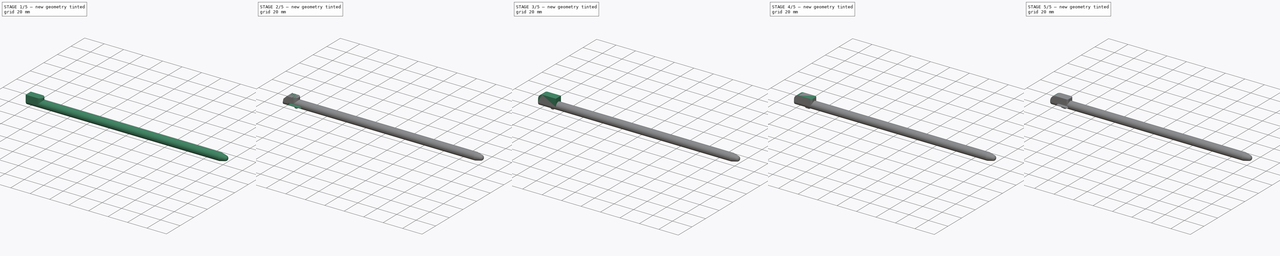
[diagram: build sequence overview — one tinted view per stage of 5, left to right]
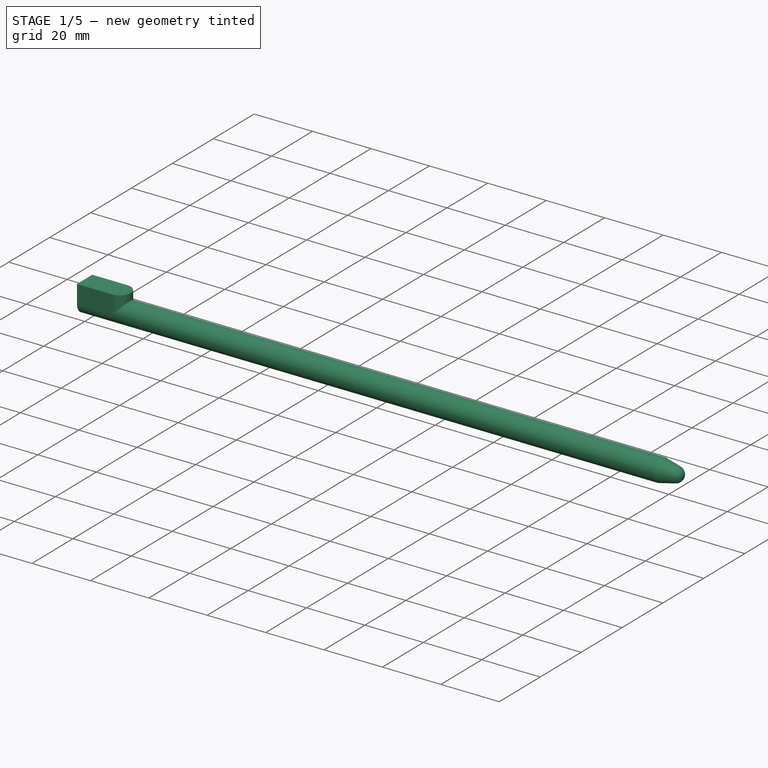
[diagram: stage 1 of 5 — iso view after this stage's code; geometry added in this stage tinted green]
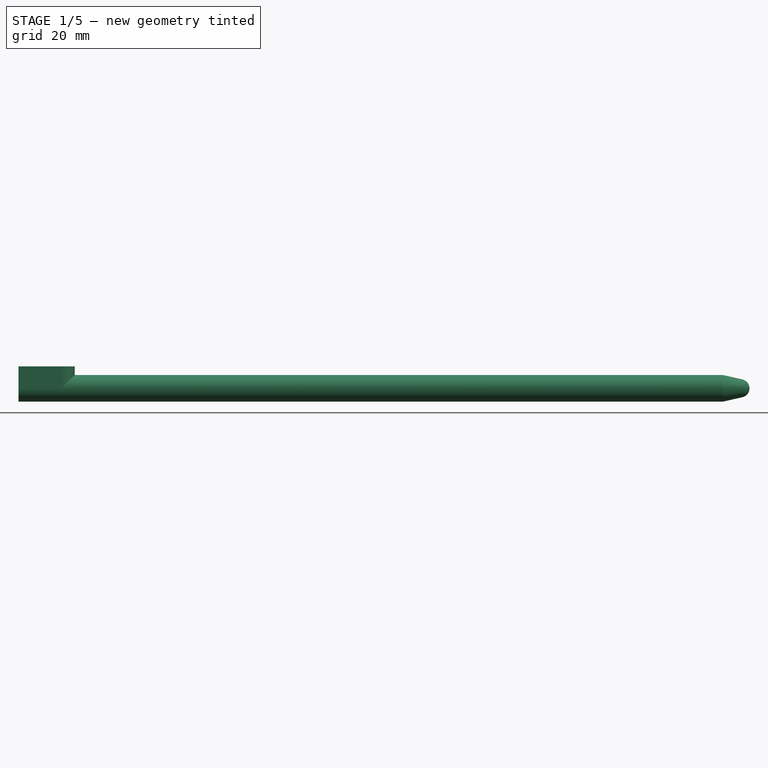
[diagram: stage 1 of 5 — front view after this stage's code; geometry added in this stage tinted green]
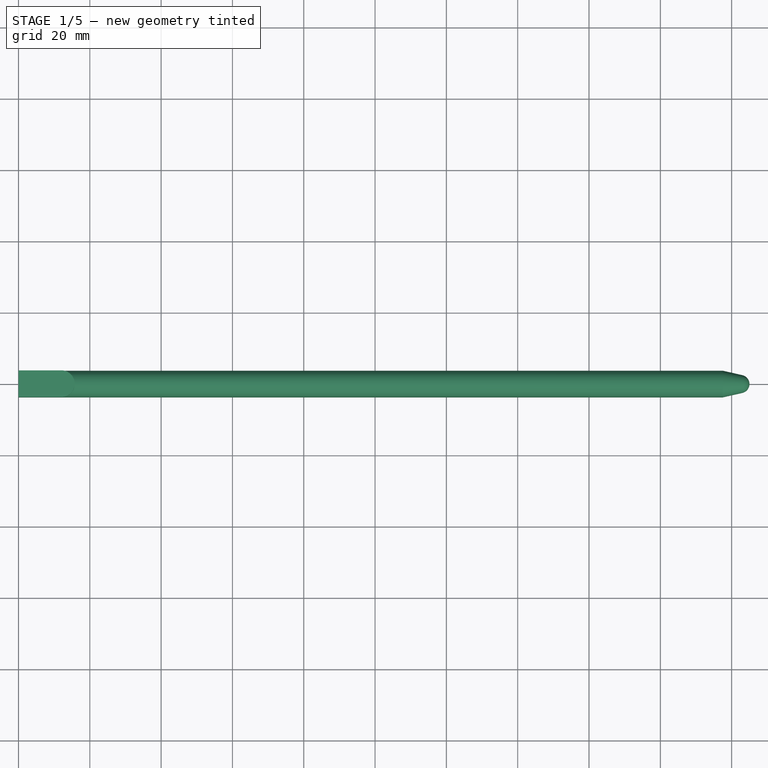
[diagram: stage 1 of 5 — top view after this stage's code; geometry added in this stage tinted green]
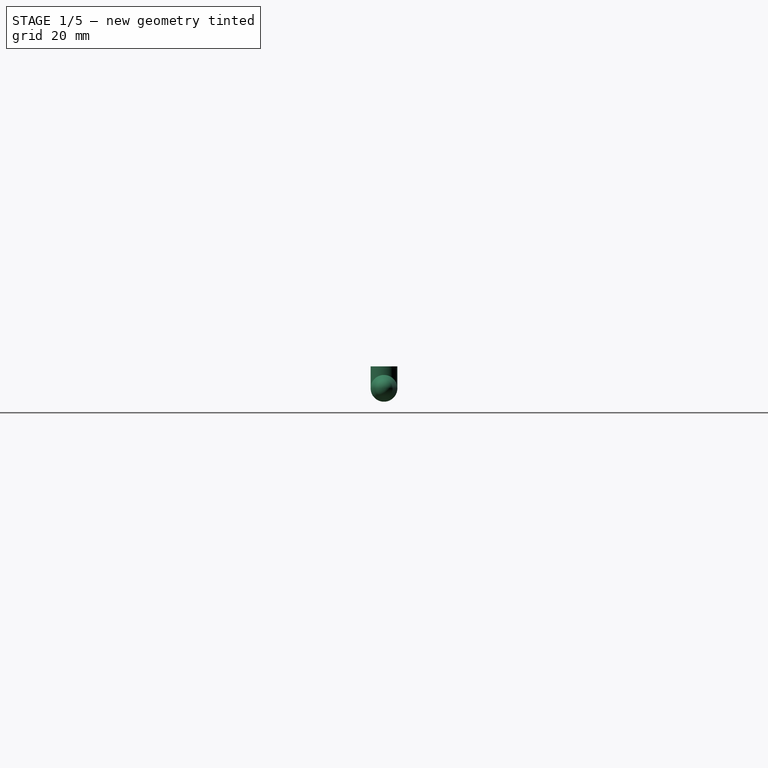
[diagram: stage 1 of 5 — right view after this stage's code; geometry added in this stage tinted green]
FCSTD DOCUMENT  (FreeCAD 1.0R39285 (Git))
Label: Hair Pin
License: All rights reserved
LicenseURL: https://en.wikipedia.org/wiki/All_rights_reserved
objects: Sketcher::SketchObject×17, PartDesign::Pocket×10, PartDesign::Pad×6, PartDesign::Body×3, PartDesign::FeatureBase×2, PartDesign::Plane×2, PartDesign::Fillet×2, PartDesign::Groove×1
note: 100 computed .brp shape members not serialized (recipe doc carries the construction recipe); baked Part::Feature solids carry a one-line shape summary decoded from their .brp

FEATURE [Sketcher::SketchObject] Sketch
  ArcFitTolerance = 1e-06
  AttachmentSupport = -> [YZ_Plane]
  FullyConstrained = true
  MakeInternals = false
  MapMode = 5
  Placement = pos=(0,0,0) rot=(0.57735,0.57735,0.57735;2.0944rad)
  sketch-geometry (1):
    g0: Circle CenterX=0 CenterY=0 CenterZ=0 NormalX=0 NormalY=0 NormalZ=1 AngleXU=0 Radius=3.75
  constraints (2):
    c: Coincident(g0,g-1)
    c: Diameter(g0) = 7.5
FEATURE [PartDesign::Pad] Pad
  Direction = (1,0,0)
  Length = 205
  Length2 = 10
  Placement = pos=(0,0,0) rot=(1,1,1;2.0944rad)
  Profile = -> Sketch
  ReferenceAxis = -> Sketch [N_Axis]
  Refine = true
  Suppressed = false
  Type = 0
FEATURE [Sketcher::SketchObject] Sketch001
  ArcFitTolerance = 1e-06
  AttachmentSupport = -> [XZ_Plane]
  ExternalGeometry = -> [Pad]
  FullyConstrained = true
  MakeInternals = false
  MapMode = 5
  Placement = pos=(0,0,0) rot=(1,0,0;1.5708rad)
  sketch-geometry (7):
    g0: LineSegment StartX=205 StartY=3.75 StartZ=0 EndX=197.5 EndY=3.75 EndZ=0
    g1: LineSegment StartX=197.5 StartY=3.75 StartZ=0 EndX=203.004 EndY=2.5 EndZ=0
    g2: ArcOfCircle CenterX=202.436 CenterY=1.18286e-06 CenterZ=0 NormalX=0 NormalY=0 NormalZ=1 AngleXU=0 Radius=2.56366 StartAngle=6.28318 EndAngle=7.63067
    g3: LineSegment [constr] StartX=203.004 StartY=2.5 StartZ=0 EndX=203.004 EndY=0 EndZ=0
    g4: LineSegment StartX=205 StartY=3.75 StartZ=0 EndX=206 EndY=3.75 EndZ=0
    g5: LineSegment StartX=206 StartY=3.75 StartZ=0 EndX=206 EndY=0 EndZ=0
    g6: LineSegment StartX=206 StartY=0 StartZ=0 EndX=205 EndY=5.558e-13 EndZ=0
  constraints (19):
    c: Coincident(g0,g-3)
    c: Horizontal(g0)
    c: DistanceX(g0,g0) = 7.5
    c: Coincident(g1,g0)
    c: Symmetric(g-3,g-3,g2)
    c: Tangent(g2,g1) = 1.5708
    c: Tangent(g2,g-3)
    c: Coincident(g3,g1)
    c: PointOnObject(g3,g-1)
    c: Vertical(g3)
    c: DistanceY(g3,g3) = 2.5
    c: Coincident(g4,g0)
    c: Horizontal(g4)
    c: Coincident(g5,g4)
    c: PointOnObject(g5,g-1)
    c: Vertical(g5)
    c: Coincident(g6,g5)
    c: Coincident(g6,g2)
    c: DistanceX(g4,g4) = 1
FEATURE [PartDesign::Groove] Groove
  Angle = 360
  Angle2 = 60
  Axis = (1,0,0)
  Base = (0,0,0)
  BaseFeature = -> Pad
  Placement = pos=(0,0,0) rot=(1,1,1;2.0944rad)
  Profile = -> Sketch001
  ReferenceAxis = -> Sketch001 [H_Axis]
  Refine = true
  Reversed = true
  Suppressed = false
  Type = 0
FEATURE [PartDesign::Body] Body001  label="DS Lite"
  AllowCompound = false
  Group = -> [Clone,DatumPlane,Sketch002,Pad001,Sketch003,Pocket,Sketch004,Pocket001,DatumPlane001,Sketch005,Pad002,Sketch006,Pad003,Sketch007,Pocket002,Sketch008,Pocket003,Sketch009,Pocket004,Fillet,Sketch010,Pocket005]
  Origin = -> Origin001
  Placement = pos=(0,15,0) rot=(0,0,1;0rad)
  Tip = -> Pocket005
FEATURE [PartDesign::FeatureBase] Clone001
  BaseFeature = -> Body
  Suppressed = false
FEATURE [Sketcher::SketchObject] Sketch011
  ArcFitTolerance = 1e-06
  AttachmentSupport = -> [XY_Plane002]
  ExternalGeometry = -> [Clone001]
  FullyConstrained = true
  MakeInternals = false
  MapMode = 5
  sketch-geometry (7):
    g0: LineSegment StartX=-1.8e-15 StartY=3.75 StartZ=0 EndX=1.8e-15 EndY=-3.75 EndZ=0
    g1: LineSegment [constr] StartX=1.8e-15 StartY=-3.75 StartZ=0 EndX=15.7653 EndY=-3.75 EndZ=0
    g2: LineSegment [constr] StartX=15.7653 StartY=-3.75 StartZ=0 EndX=15.7653 EndY=3.75 EndZ=0
    g3: LineSegment [constr] StartX=15.7653 StartY=3.75 StartZ=0 EndX=-1.8e-15 EndY=3.75 EndZ=0
    g4: ArcOfCircle CenterX=12.0153 CenterY=1e-16 CenterZ=0 NormalX=0 NormalY=0 NormalZ=1 AngleXU=0 Radius=3.75 StartAngle=4.71239 EndAngle=7.85398
    g5: LineSegment StartX=-1.8e-15 StartY=3.75 StartZ=0 EndX=12.0153 EndY=3.75 EndZ=0
    g6: LineSegment StartX=12.0153 StartY=-3.75 StartZ=0 EndX=1.8e-15 EndY=-3.75 EndZ=0
  constraints (17):
    c: Coincident(g0,g1)
    c: Coincident(g1,g2)
    c: Coincident(g2,g3)
    c: Coincident(g3,g0)
    c: Vertical(g2)
    c: Horizontal(g1)
    c: Horizontal(g3)
    c: Coincident(g0,g-3)
    c: Coincident(g0,g-3)
    c: DistanceX(g3,g3) = 15.7653
    c: Tangent(g4,g3) = -1.5708
    c: Tangent(g4,g1) = -1.5708
    c: Tangent(g4,g2)
    c: Coincident(g5,g0)
    c: Coincident(g5,g4)
    c: Tangent(g6,g4) = 1.5708
    c: Coincident(g6,g0)
FEATURE [PartDesign::Pad] Pad004
  BaseFeature = -> Clone001
  Direction = (0,0,1)
  Length = 6.17188
  Length2 = 10
  Profile = -> Sketch011
  ReferenceAxis = -> Sketch011 [N_Axis]
  Refine = true
  Suppressed = false
  Type = 0
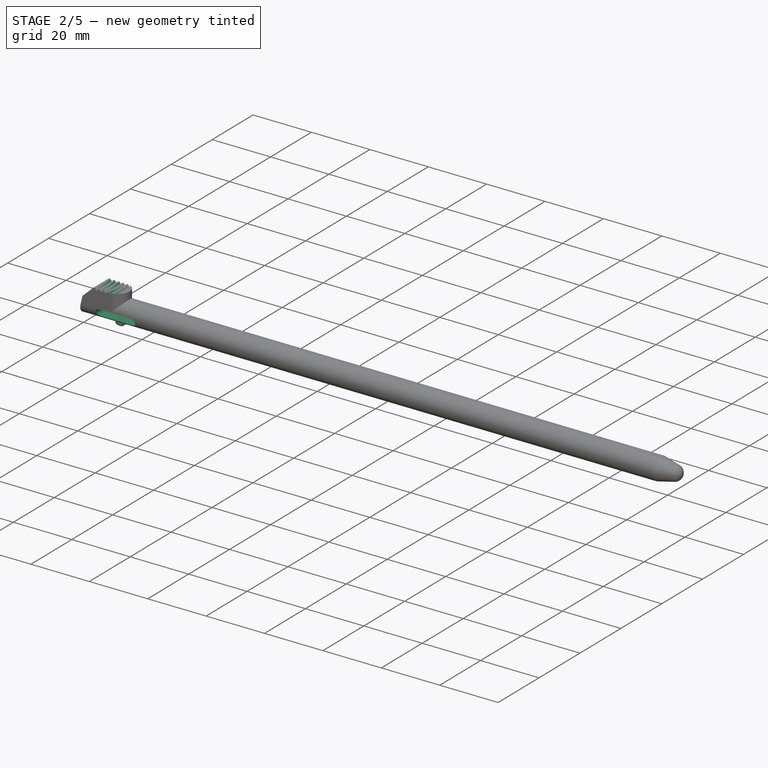
[diagram: stage 2 of 5 — iso view after this stage's code; geometry added in this stage tinted green]
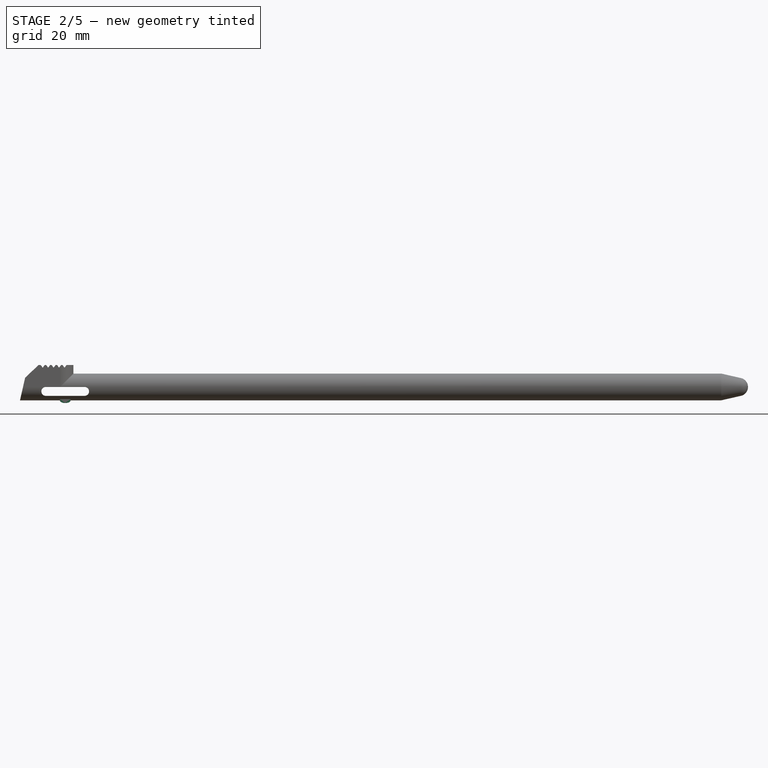
[diagram: stage 2 of 5 — front view after this stage's code; geometry added in this stage tinted green]
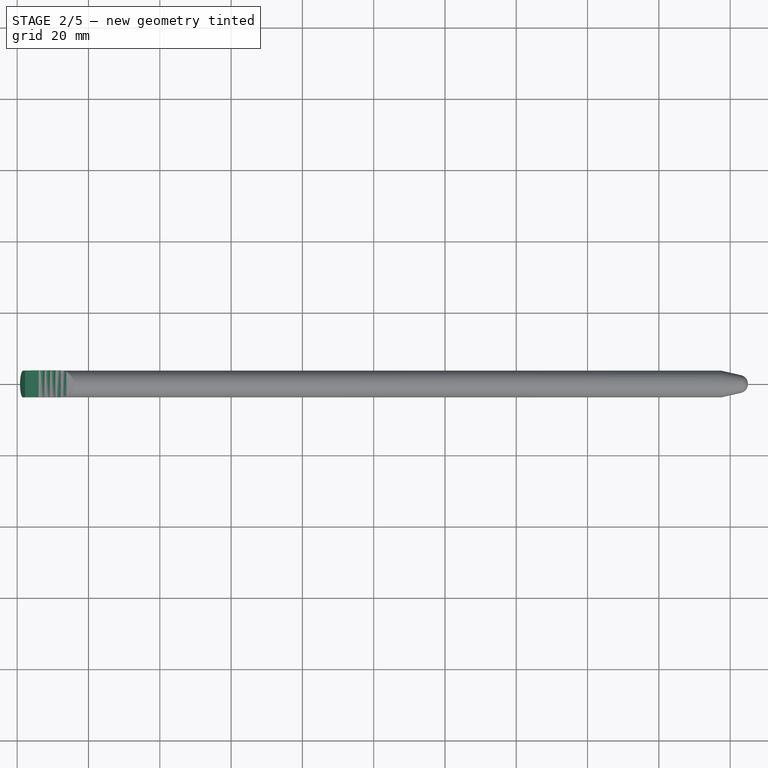
[diagram: stage 2 of 5 — top view after this stage's code; geometry added in this stage tinted green]
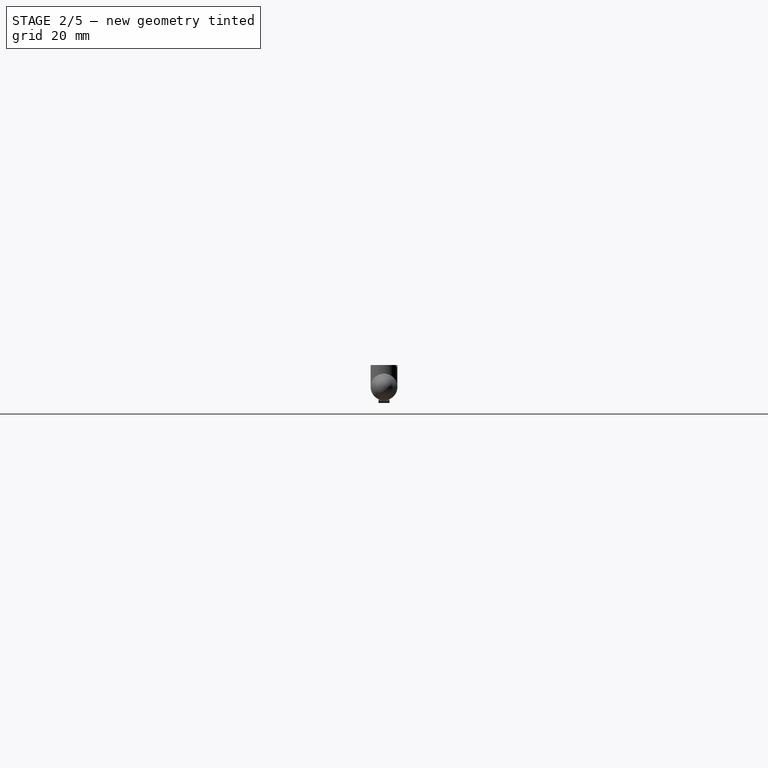
[diagram: stage 2 of 5 — right view after this stage's code; geometry added in this stage tinted green]
FEATURE [Sketcher::SketchObject] Sketch012
  ArcFitTolerance = 1e-06
  AttachmentSupport = -> [Pad004]
  ExternalGeometry = -> [Pad004]
  FullyConstrained = true
  MakeInternals = false
  MapMode = 5
  Placement = pos=(2.2e-15,-3.75,0) rot=(1,0,0;1.5708rad)
  sketch-geometry (13):
    g0: LineSegment [constr] StartX=2e-15 StartY=-3.75 StartZ=0 EndX=0 EndY=2.98469 EndZ=0
    g1: LineSegment [constr] StartX=0 StartY=2.98469 StartZ=0 EndX=1.53061 EndY=2.98469 EndZ=0
    g2: LineSegment [constr] StartX=0 StartY=6.17188 StartZ=0 EndX=4.89796 EndY=6.17188 EndZ=0
    g3: LineSegment [constr] StartX=4.89796 StartY=6.17188 StartZ=0 EndX=1.53061 EndY=2.98469 EndZ=0
    g4: LineSegment [constr] StartX=1.53061 StartY=2.98469 StartZ=0 EndX=2e-15 EndY=-3.75 EndZ=0
    g5: LineSegment [constr] StartX=3.21429 StartY=4.57828 StartZ=0 EndX=3.74037 EndY=4.02247 EndZ=0
    g6: LineSegment [constr] StartX=0.765306 StartY=-0.382653 StartZ=0 EndX=1.51158 EndY=-0.552261 EndZ=0
    g7: LineSegment [constr] StartX=1.53061 StartY=2.98469 StartZ=0 EndX=2.2254 EndY=2.58856 EndZ=0
    g8: LineSegment StartX=2.2254 StartY=2.58856 StartZ=0 EndX=6.01128 EndY=6.17188 EndZ=0
    g9: LineSegment StartX=2.2254 StartY=2.58856 StartZ=0 EndX=0.784822 EndY=-3.75 EndZ=0
    g10: LineSegment StartX=0.784822 StartY=-3.75 StartZ=0 EndX=-0.784822 EndY=-3.75 EndZ=0
    g11: LineSegment StartX=-0.784822 StartY=-3.75 StartZ=0 EndX=-0.784822 EndY=6.17188 EndZ=0
    g12: LineSegment StartX=-0.784822 StartY=6.17188 StartZ=0 EndX=6.01128 EndY=6.17188 EndZ=0
  constraints (35):
    c: Coincident(g0,g-3)
    c: PointOnObject(g0,g-2)
    c: Coincident(g1,g0)
    c: Horizontal(g1)
    c: Coincident(g2,g-4)
    c: PointOnObject(g2,g-4)
    c: Distance(g2,g2) = 4.89796
    c: Distance(g1,g1) = 1.53061
    c: Coincident(g3,g2)
    c: Coincident(g3,g1)
    c: DistanceY(g0,g0) = 6.73469
    c: Coincident(g4,g1)
    c: Coincident(g4,g0)
    c: Symmetric(g3,g3,g5)
    c: Symmetric(g4,g4,g6)
    c: Coincident(g7,g1)
    c: Coincident(g8,g7)
    c: PointOnObject(g8,g-4)
    c: Coincident(g9,g7)
    c: Coincident(g10,g9)
    c: Horizontal(g10)
    c: Coincident(g11,g10)
    c: Vertical(g11)
    c: Coincident(g12,g11)
    c: Coincident(g12,g8)
    c: Horizontal(g12)
    c: PointOnObject(g5,g8)
    c: PointOnObject(g6,g9)
    c: Symmetric(g10,g9,g0)
    c: Perpendicular(g6,g4)
    c: Perpendicular(g5,g3)
    c: Perpendicular(g8,g5)
    c: Perpendicular(g6,g9)
    c: Equal(g5,g6)
    c: Distance(g5,g5) = 0.765306
FEATURE [PartDesign::Pocket] Pocket006
  BaseFeature = -> Pad004
  Direction = (0,1,-2e-16)
  Length = 5
  Length2 = 5
  Profile = -> Sketch012
  ReferenceAxis = -> Sketch012 [N_Axis]
  Refine = true
  Suppressed = false
  Type = 1
FEATURE [Sketcher::SketchObject] Sketch013
  ArcFitTolerance = 1e-06
  AttachmentSupport = -> [Pocket006]
  ExternalGeometry = -> [Pocket006]
  FullyConstrained = true
  MakeInternals = false
  MapMode = 5
  Placement = pos=(2.2e-15,-3.75,0) rot=(1,0,0;1.5708rad)
  sketch-geometry (28):
    g0: LineSegment [constr] StartX=15.7653 StartY=6.17188 StartZ=0 EndX=13.852 EndY=6.17188 EndZ=0
    g1: LineSegment StartX=13.852 StartY=6.17188 StartZ=0 EndX=13.2781 EndY=5.40657 EndZ=0
    g2: LineSegment StartX=13.2781 StartY=5.40657 StartZ=0 EndX=12.7041 EndY=6.17188 EndZ=0
    g3: LineSegment StartX=12.7041 StartY=6.17188 StartZ=0 EndX=12.3214 EndY=6.17188 EndZ=0
    g4: LineSegment StartX=12.3214 StartY=6.17188 StartZ=0 EndX=11.7474 EndY=5.40657 EndZ=0
    g5: LineSegment StartX=11.7474 StartY=5.40657 StartZ=0 EndX=11.1735 EndY=6.17188 EndZ=0
    g6: LineSegment StartX=11.1735 StartY=6.17188 StartZ=0 EndX=10.7908 EndY=6.17188 EndZ=0
    g7: LineSegment StartX=10.7908 StartY=6.17188 StartZ=0 EndX=10.2168 EndY=5.40657 EndZ=0
    g8: LineSegment StartX=10.2168 StartY=5.40657 StartZ=0 EndX=9.64286 EndY=6.17188 EndZ=0
    g9: LineSegment StartX=9.64286 StartY=6.17188 StartZ=0 EndX=9.2602 EndY=6.17188 EndZ=0
    g10: LineSegment StartX=9.2602 StartY=6.17188 StartZ=0 EndX=8.68623 EndY=5.40657 EndZ=0
    g11: LineSegment StartX=8.68623 StartY=5.40657 StartZ=0 EndX=8.11225 EndY=6.17188 EndZ=0
    g12: LineSegment StartX=8.11225 StartY=6.17188 StartZ=0 EndX=7.72959 EndY=6.17188 EndZ=0
    g13: LineSegment StartX=7.72959 StartY=6.17188 StartZ=0 EndX=7.15561 EndY=5.40657 EndZ=0
    g14: LineSegment StartX=7.15561 StartY=5.40657 StartZ=0 EndX=6.58163 EndY=6.17188 EndZ=0
    g15: LineSegment StartX=6.58163 StartY=6.17188 StartZ=0 EndX=6.58163 EndY=7.17188 EndZ=0
    g16: LineSegment StartX=6.58163 StartY=7.17188 StartZ=0 EndX=13.852 EndY=7.17188 EndZ=0
    g17: LineSegment StartX=13.852 StartY=7.17188 StartZ=0 EndX=13.852 EndY=6.17188 EndZ=0
    g18: LineSegment [constr] StartX=12.0153 StartY=6.17188 StartZ=0 EndX=12.7041 EndY=6.17188 EndZ=0
    g19: LineSegment [constr] StartX=12.3214 StartY=6.17188 StartZ=0 EndX=11.1735 EndY=6.17188 EndZ=0
    g20: LineSegment [constr] StartX=10.7908 StartY=6.17188 StartZ=0 EndX=9.64286 EndY=6.17188 EndZ=0
    g21: LineSegment [constr] StartX=9.2602 StartY=6.17188 StartZ=0 EndX=8.11225 EndY=6.17188 EndZ=0
    g22: LineSegment [constr] StartX=7.72959 StartY=6.17188 StartZ=0 EndX=6.58163 EndY=6.17188 EndZ=0
    g23: LineSegment [constr] StartX=7.15561 StartY=5.40657 StartZ=0 EndX=8.68623 EndY=5.40657 EndZ=0
    g24: LineSegment [constr] StartX=8.68623 StartY=5.40657 StartZ=0 EndX=10.2168 EndY=5.40657 EndZ=0
    g25: LineSegment [constr] StartX=10.2168 StartY=5.40657 StartZ=0 EndX=11.7474 EndY=5.40657 EndZ=0
    g26: LineSegment [constr] StartX=11.7474 StartY=5.40657 StartZ=0 EndX=13.2781 EndY=5.40657 EndZ=0
    g27: LineSegment [constr] StartX=8.68623 StartY=5.40657 StartZ=0 EndX=8.68623 EndY=6.17187 EndZ=0
  constraints (73):
    c: Coincident(g-3,g0)
    c: Horizontal(g0)
    c: Coincident(g0,g1)
    c: Coincident(g1,g2)
    c: Coincident(g2,g3)
    c: Horizontal(g3)
    c: Coincident(g3,g4)
    c: Coincident(g4,g5)
    c: Coincident(g5,g6)
    c: Horizontal(g6)
    c: Coincident(g6,g7)
    c: Coincident(g7,g8)
    c: Coincident(g8,g9)
    c: Horizontal(g9)
    c: Coincident(g9,g10)
    c: Coincident(g10,g11)
    c: Coincident(g11,g12)
    c: Horizontal(g12)
    c: Coincident(g12,g13)
    c: Coincident(g13,g14)
    c: Coincident(g14,g15)
    c: Vertical(g15)
    c: Coincident(g15,g16)
    c: Horizontal(g16)
    c: Coincident(g16,g17)
    c: Coincident(g17,g0)
    c: Vertical(g17)
    c: Equal(g1,g2)
    c: Equal(g2,g4)
    c: Equal(g4,g5)
    c: Equal(g7,g5)
    c: Equal(g7,g8)
    c: Equal(g8,g10)
    c: Equal(g13,g14)
    c: Equal(g13,g11)
    c: Equal(g12,g9)
    c: Equal(g9,g6)
    c: Equal(g3,g6)
    c: Coincident(g18,g-3)
    c: Coincident(g18,g2)
    c: Horizontal(g18)
    c: Coincident(g19,g3)
    c: Coincident(g19,g5)
    c: Coincident(g20,g6)
    c: Coincident(g20,g8)
    c: Horizontal(g20)
    c: Coincident(g21,g9)
    c: Coincident(g21,g11)
    c: Coincident(g22,g12)
    c: Coincident(g22,g14)
    c: Coincident(g23,g13)
    c: Coincident(g23,g10)
    c: Horizontal(g23)
    c: Coincident(g24,g10)
    c: Coincident(g24,g7)
    c: Horizontal(g24)
    c: Coincident(g25,g7)
    c: Coincident(g25,g4)
    c: Horizontal(g25)
    c: Coincident(g26,g4)
    c: Coincident(g26,g1)
    c: Horizontal(g26)
    c: Horizontal(g22)
    c: Horizontal(g21)
    c: Horizontal(g19)
    c: Coincident(g27,g10)
    c: Symmetric(g21,g21,g27)
    c: Vertical(g27)
    c: DistanceY(g27,g27) = 0.765306
    c: DistanceX(g19,g19) = 1.14796
    c: DistanceX(g3,g3) = 0.382653
    c: DistanceX(g0,g0) = 1.91326
    c: Distance(g15,g15) = 1
FEATURE [PartDesign::Pocket] Pocket007
  BaseFeature = -> Pocket006
  Direction = (0,1,-2e-16)
  Length = 5
  Length2 = 5
  Profile = -> Sketch013
  ReferenceAxis = -> Sketch013 [N_Axis]
  Refine = true
  Suppressed = false
  Type = 1
FEATURE [Sketcher::SketchObject] Sketch014
  ArcFitTolerance = 1e-06
  AttachmentSupport = -> [XZ_Plane002]
  ExternalGeometry = -> [Pocket007]
  FullyConstrained = true
  MakeInternals = false
  MapMode = 5
  Placement = pos=(0,0,0) rot=(1,0,0;1.5708rad)
  sketch-geometry (8):
    g0: LineSegment [constr] StartX=15 StartY=-3.75 StartZ=0 EndX=15 EndY=0 EndZ=0
    g1: LineSegment [constr] StartX=15 StartY=0 StartZ=0 EndX=0 EndY=0 EndZ=0
    g2: Ellipse CenterX=13.4694 CenterY=-3.75 CenterZ=0 NormalX=0 NormalY=0 NormalZ=1 MajorRadius=1.53061 MinorRadius=0.765306 AngleXU=0
    g3: LineSegment [constr] StartX=15 StartY=-3.75 StartZ=0 EndX=11.9388 EndY=-3.75 EndZ=0
    g4: LineSegment [constr] StartX=13.4694 StartY=-2.98469 StartZ=0 EndX=13.4694 EndY=-4.51531 EndZ=0
    g5: GeomPoint [constr] X=14.7949 Y=-3.75 Z=0
    g6: GeomPoint [constr] X=12.1438 Y=-3.75 Z=0
    g7: LineSegment [constr] StartX=0.784822 StartY=-3.75 StartZ=0 EndX=11.9388 EndY=-3.75 EndZ=0
  constraints (13):
    c: PointOnObject(g0,g-1)
    c: Vertical(g0)
    c: Coincident(g1,g0)
    c: Coincident(g1,g-1)
    c: InternalAlignment(g3-g6 -> g2) x4
    c: DistanceX(g3,g3) = 3.06122
    c: Distance(g4,g4) = 1.53061
    c: Coincident(g7,g-3)
    c: Coincident(g7,g3)
    c: Horizontal(g7)
    c: DistanceX(g1,g1) = 15
    c: Horizontal(g3)
    c: Coincident(g3,g0)
FEATURE [PartDesign::Pad] Pad005
  BaseFeature = -> Pocket007
  Direction = (0,-1,2e-16)
  Length = 1.53061
  Length2 = 1.53061
  Profile = -> Sketch014
  ReferenceAxis = -> Sketch014 [N_Axis]
  Refine = true
  Suppressed = false
  Type = 4
FEATURE [Sketcher::SketchObject] Sketch015
  ArcFitTolerance = 1e-06
  AttachmentSupport = -> [Pad005]
  ExternalGeometry = -> [Pad005]
  FullyConstrained = true
  MakeInternals = false
  MapMode = 5
  Placement = pos=(2.2e-15,-3.75,0) rot=(1,0,0;1.5708rad)
  sketch-geometry (7):
    g0: ArcOfCircle CenterX=8.03571 CenterY=-1.25 CenterZ=0 NormalX=0 NormalY=0 NormalZ=1 AngleXU=0 Radius=1.25 StartAngle=1.5708 EndAngle=4.71239
    g1: ArcOfCircle CenterX=18.9031 CenterY=-1.25 CenterZ=0 NormalX=0 NormalY=0 NormalZ=1 AngleXU=0 Radius=1.25 StartAngle=4.71239 EndAngle=7.85398
    g2: LineSegment StartX=8.03571 StartY=0 StartZ=0 EndX=18.9031 EndY=0 EndZ=0
    g3: LineSegment StartX=8.03571 StartY=-2.5 StartZ=0 EndX=18.9031 EndY=-2.5 EndZ=0
    g4: LineSegment [constr] StartX=0 StartY=0 StartZ=0 EndX=18.9031 EndY=0 EndZ=0
    g5: LineSegment [constr] StartX=13.4694 StartY=-2.5 StartZ=0 EndX=13.4694 EndY=-3.42341 EndZ=0
    g6: LineSegment [constr] StartX=8.03571 StartY=0 StartZ=0 EndX=8.03571 EndY=-2.5 EndZ=0
  constraints (16):
    c: Tangent(g0,g2) = 1.5708
    c: Tangent(g0,g3) = -1.5708
    c: Tangent(g1,g2) = 1.5708
    c: Tangent(g1,g3) = -1.5708
    c: Equal(g0,g1)
    c: Horizontal(g2)
    c: Coincident(g4,g-1)
    c: PointOnObject(g4,g-1)
    c: Coincident(g1,g4)
    c: Symmetric(g3,g3,g5)
    c: Symmetric(g-4,g-4,g5)
    c: Vertical(g5)
    c: DistanceX(g3,g3) = 10.8673
    c: Coincident(g6,g0)
    c: Coincident(g6,g0)
    c: DistanceY(g6,g6) = 2.5
FEATURE [PartDesign::Pocket] Pocket008
  BaseFeature = -> Pad005
  Direction = (0,1,-2e-16)
  Length = 5
  Length2 = 5
  Profile = -> Sketch015
  ReferenceAxis = -> Sketch015 [N_Axis]
  Refine = true
  Suppressed = false
  Type = 1
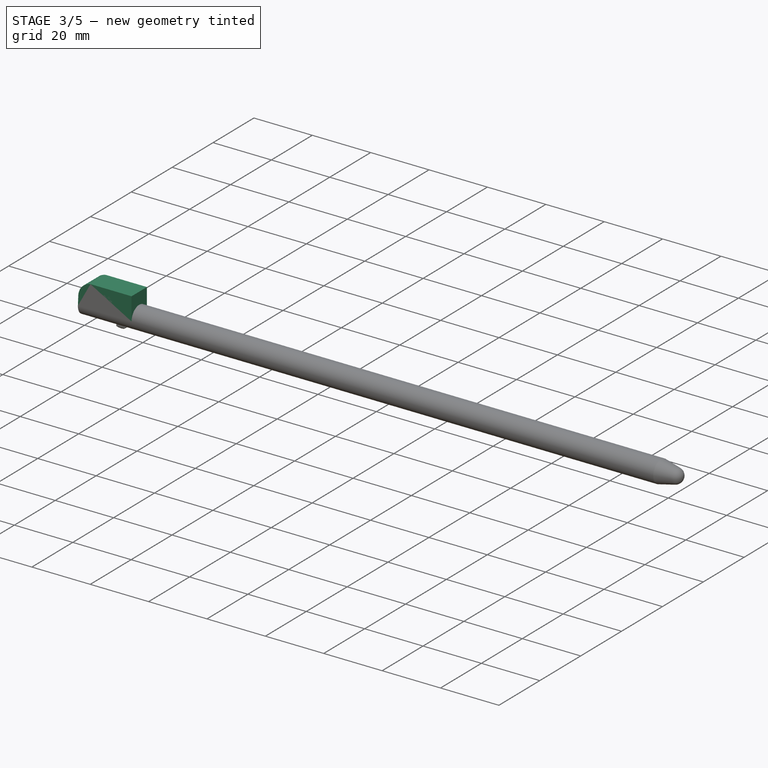
[diagram: stage 3 of 5 — iso view after this stage's code; geometry added in this stage tinted green]
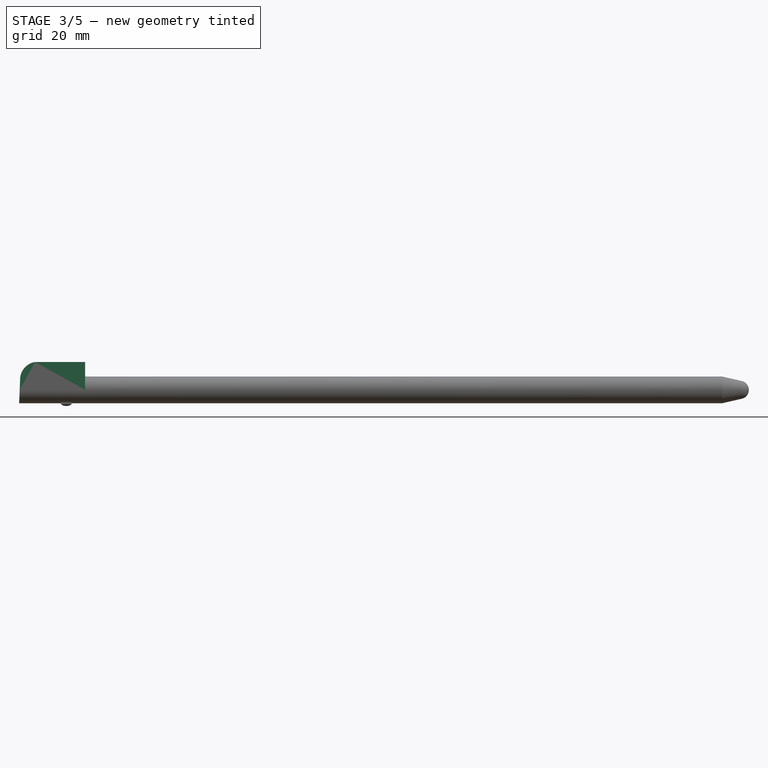
[diagram: stage 3 of 5 — front view after this stage's code; geometry added in this stage tinted green]
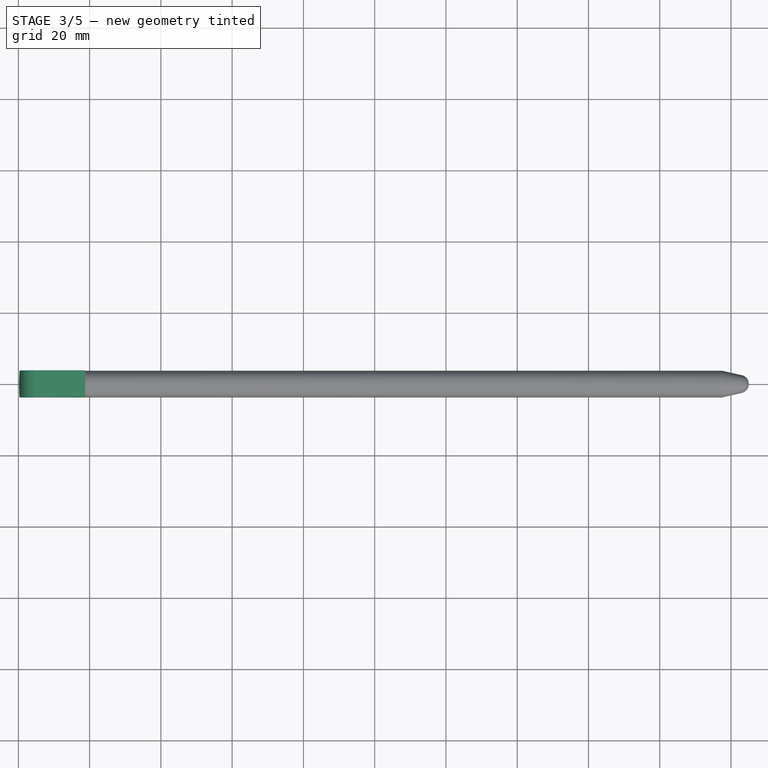
[diagram: stage 3 of 5 — top view after this stage's code; geometry added in this stage tinted green]
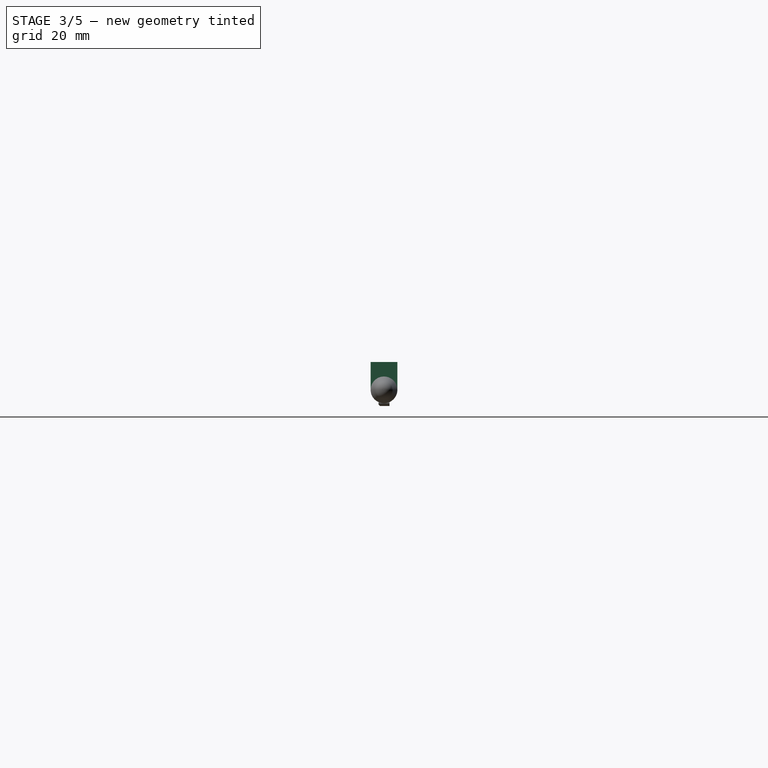
[diagram: stage 3 of 5 — right view after this stage's code; geometry added in this stage tinted green]
FEATURE [PartDesign::Body] Body  label="Base"
  AllowCompound = false
  Group = -> [Sketch,Pad,Sketch001,Groove]
  Origin = -> Origin
  Tip = -> Groove
FEATURE [PartDesign::FeatureBase] Clone
  BaseFeature = -> Body
  Suppressed = false
FEATURE [PartDesign::Plane] DatumPlane
  AttachmentOffset = pos=(0,0,0) rot=(0,1,0;1.5708rad)
  AttachmentSupport = -> [Clone]
  Length = 251.448
  MapMode = 45
  Placement = pos=(98.75,3.75,8.74e-14) rot=(0,0.707107,0.707107;3.14159rad)
  ResizeMode = 0
  Width = 71.4476
FEATURE [Sketcher::SketchObject] Sketch002
  ArcFitTolerance = 1e-06
  AttachmentSupport = -> [DatumPlane]
  ExternalGeometry = -> [Clone]
  FullyConstrained = true
  MakeInternals = false
  MapMode = 5
  Placement = pos=(98.75,3.75,8.74e-14) rot=(0,0.707107,0.707107;3.14159rad)
  sketch-geometry (4):
    g0: LineSegment StartX=98.75 StartY=-8.79e-14 StartZ=0 EndX=98.75 EndY=7.8125 EndZ=0
    g1: LineSegment StartX=98.75 StartY=7.8125 StartZ=0 EndX=80 EndY=7.8125 EndZ=0
    g2: LineSegment StartX=80 StartY=7.8125 StartZ=0 EndX=80 EndY=-8.79e-14 EndZ=0
    g3: LineSegment StartX=80 StartY=-8.79e-14 StartZ=0 EndX=98.75 EndY=-8.79e-14 EndZ=0
  constraints (11):
    c: Coincident(g0,g1)
    c: Coincident(g1,g2)
    c: Coincident(g2,g3)
    c: Coincident(g3,g0)
    c: Vertical(g0)
    c: Vertical(g2)
    c: Horizontal(g1)
    c: Horizontal(g3)
    c: Symmetric(g-3,g-3,g0)
    c: DistanceY(g0,g0) = 7.8125
    c: Distance(g1,g1) = 18.75
FEATURE [PartDesign::Pad] Pad001
  BaseFeature = -> Clone
  Direction = (0,1,-2e-16)
  Length = 7.5
  Length2 = 10
  Offset = 7.5
  Profile = -> Sketch002
  ReferenceAxis = -> Sketch002 [N_Axis]
  Refine = true
  Reversed = true
  Suppressed = false
  Type = 0
FEATURE [Sketcher::SketchObject] Sketch003
  ArcFitTolerance = 1e-06
  AttachmentSupport = -> [DatumPlane]
  ExternalGeometry = -> [Pad001]
  FullyConstrained = true
  MakeInternals = false
  MapMode = 5
  Placement = pos=(98.75,3.75,8.74e-14) rot=(0,0.707107,0.707107;3.14159rad)
  sketch-geometry (6):
    g0: LineSegment StartX=98.75 StartY=7.8125 StartZ=0 EndX=94.0625 EndY=7.8125 EndZ=0
    g1: LineSegment StartX=98.75 StartY=3.125 StartZ=0 EndX=98.75 EndY=7.8125 EndZ=0
    g2: LineSegment [constr] StartX=98.75 StartY=3.125 StartZ=0 EndX=98.25 EndY=3.125 EndZ=0
    g3: LineSegment StartX=98.75 StartY=3.125 StartZ=0 EndX=98.75 EndY=-9.375 EndZ=0
    g4: ArcOfCircle CenterX=93.3115 CenterY=2.92744 CenterZ=0 NormalX=0 NormalY=0 NormalZ=1 AngleXU=0 Radius=4.94245 StartAngle=0.0399825 EndAngle=1.41826
    g5: LineSegment StartX=98.25 StartY=3.125 StartZ=0 EndX=98.75 EndY=-9.375 EndZ=0
  constraints (17):
    c: Coincident(g1,g0)
    c: Horizontal(g0)
    c: Vertical(g1)
    c: Coincident(g0,g-3)
    c: Equal(g0,g1)
    c: Distance(g0,g0) = 4.6875
    c: Coincident(g2,g1)
    c: Horizontal(g2)
    c: Distance(g2,g2) = 0.5
    c: Coincident(g3,g1)
    c: Vertical(g3)
    c: DistanceY(g3,g3) = 12.5
    c: Coincident(g4,g0)
    c: Coincident(g4,g2)
    c: Coincident(g5,g2)
    c: Coincident(g5,g3)
    c: Tangent(g4,g5)
FEATURE [PartDesign::Pocket] Pocket
  BaseFeature = -> Pad001
  Direction = (0,-1,2e-16)
  Length = 5
  Length2 = 5
  Profile = -> Sketch003
  ReferenceAxis = -> Sketch003 [N_Axis]
  Refine = true
  Suppressed = false
  Type = 1
FEATURE [PartDesign::Fillet] Fillet001
  Base = -> Pocket008 [Edge7,Edge31,Edge60,Edge32,Edge33,Edge34,Edge35,Edge36,Edge37,Edge38,Edge39,Edge40,Edge41,Edge42,Edge71,Edge43,Edge70,Edge69,Edge68,Edge67,Edge59,Edge58,Edge57,Edge56,Edge55,Edge54,Edge53,Edge52,Edge51,Edge50,Edge49,Edge63,Edge48,Edge64,Edge65,Edge66,Edge8,Edge45,Edge30]
  BaseFeature = -> Pocket008
  Radius = 0.3
  Refine = true
  SupportTransform = false
  Suppressed = false
  UseAllEdges = false
FEATURE [Sketcher::SketchObject] Sketch016
  ArcFitTolerance = 1e-06
  AttachmentSupport = -> [YZ_Plane002]
  ExternalGeometry = -> [Fillet001]
  FullyConstrained = true
  MakeInternals = false
  MapMode = 5
  Placement = pos=(0,0,0) rot=(0.57735,0.57735,0.57735;2.0944rad)
  sketch-geometry (6):
    g0: LineSegment [constr] StartX=-1.53061 StartY=-4.51531 StartZ=0 EndX=1.53061 EndY=-4.51531 EndZ=0
    g1: LineSegment StartX=-3.09345 StartY=-2.11968 StartZ=0 EndX=-2.7158 EndY=-2.58591 EndZ=0
    g2: LineSegment StartX=-2.7158 StartY=-2.58591 StartZ=0 EndX=-1.53061 EndY=-4.04907 EndZ=0
    g3: LineSegment StartX=-1.53061 StartY=-4.04907 StartZ=0 EndX=-1.15295 EndY=-4.51531 EndZ=0
    g4: LineSegment StartX=-1.15295 StartY=-4.51531 StartZ=0 EndX=-3.09345 EndY=-4.51531 EndZ=0
    g5: LineSegment StartX=-3.09345 StartY=-4.51531 StartZ=0 EndX=-3.09345 EndY=-2.11968 EndZ=0
  constraints (17):
    c: Coincident(g0,g-4)
    c: Coincident(g0,g-5)
    c: PointOnObject(g1,g-3)
    c: PointOnObject(g1,g-3)
    c: Coincident(g2,g1)
    c: PointOnObject(g2,g-4)
    c: Coincident(g3,g2)
    c: PointOnObject(g3,g0)
    c: Parallel(g1,g2)
    c: Parallel(g2,g3)
    c: Equal(g1,g3)
    c: Distance(g1,g1) = 0.6
    c: Coincident(g4,g3)
    c: Horizontal(g4)
    c: Coincident(g5,g4)
    c: Coincident(g5,g1)
    c: Vertical(g5)
FEATURE [PartDesign::Pocket] Pocket009
  BaseFeature = -> Fillet001
  Direction = (-1,0,0)
  Length = 5
  Length2 = 5
  Profile = -> Sketch016
  ReferenceAxis = -> Sketch016 [N_Axis]
  Refine = true
  Reversed = true
  Suppressed = false
  Type = 1
FEATURE [PartDesign::Body] Body002  label="2DS"
  AllowCompound = false
  Group = -> [Clone001,Sketch011,Pad004,Sketch012,Pocket006,Sketch013,Pocket007,Sketch014,Pad005,Sketch015,Pocket008,Fillet001,Sketch016,Pocket009]
  Origin = -> Origin002
  Placement = pos=(0,30,0) rot=(0,0,1;0rad)
  Tip = -> Pocket009
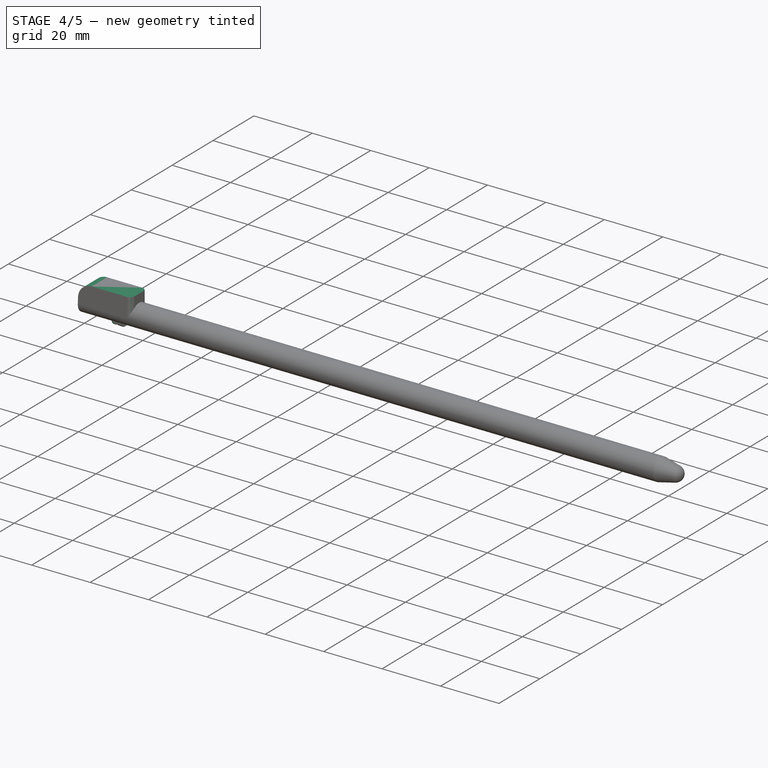
[diagram: stage 4 of 5 — iso view after this stage's code; geometry added in this stage tinted green]
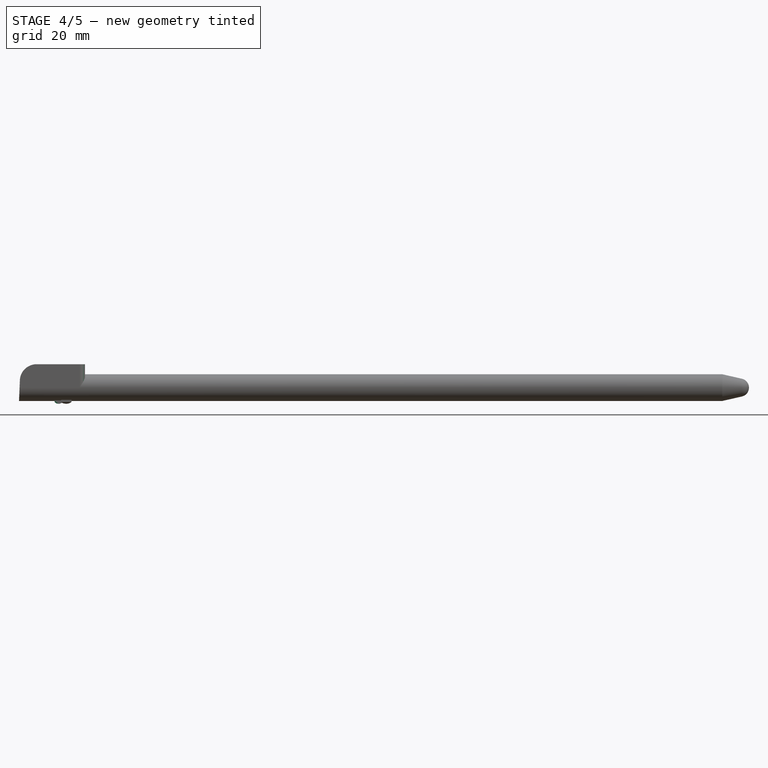
[diagram: stage 4 of 5 — front view after this stage's code; geometry added in this stage tinted green]
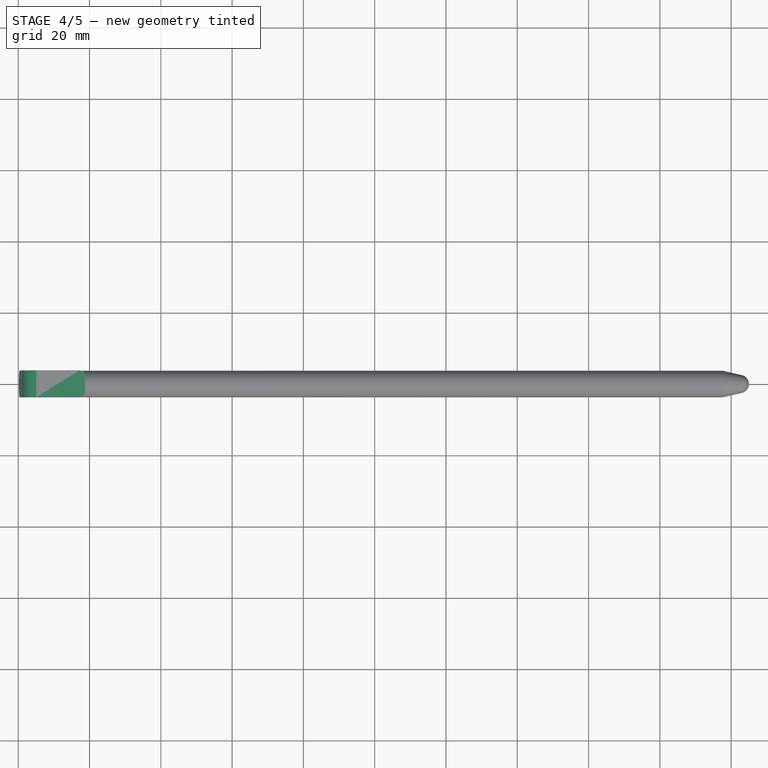
[diagram: stage 4 of 5 — top view after this stage's code; geometry added in this stage tinted green]
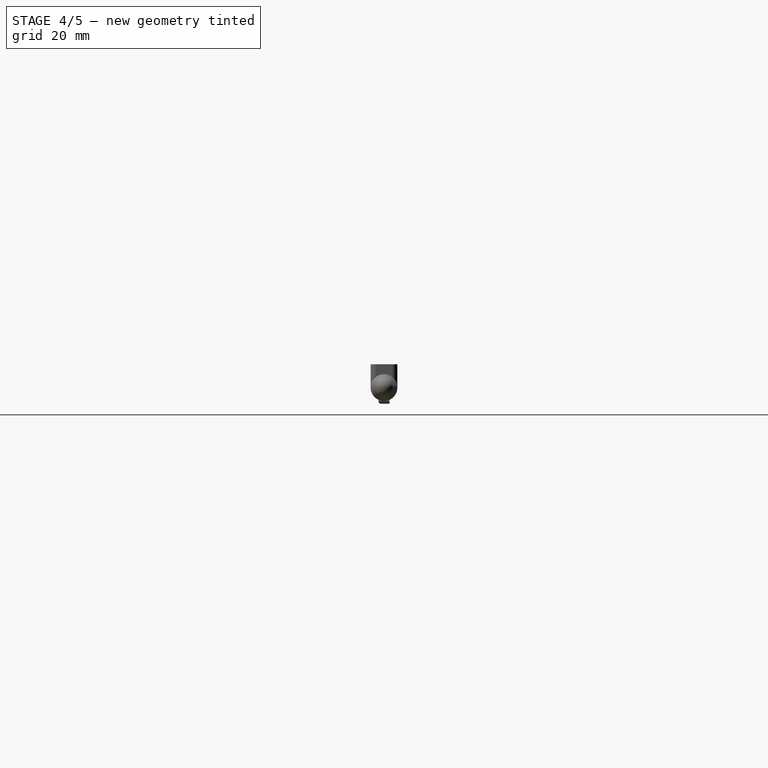
[diagram: stage 4 of 5 — right view after this stage's code; geometry added in this stage tinted green]
FEATURE [Sketcher::SketchObject] Sketch004
  ArcFitTolerance = 1e-06
  AttachmentSupport = -> [Pocket]
  ExternalGeometry = -> [Pocket]
  FullyConstrained = true
  MakeInternals = false
  MapMode = 5
  Placement = pos=(0,1.7e-15,7.8125) rot=(0,0,1;0rad)
  sketch-geometry (6):
    g0: LineSegment StartX=17.1875 StartY=3.75 StartZ=0 EndX=20.3125 EndY=3.75 EndZ=0
    g1: LineSegment StartX=17.1875 StartY=-3.75 StartZ=0 EndX=20.3125 EndY=-3.75 EndZ=0
    g2: LineSegment StartX=20.3125 StartY=-3.75 StartZ=0 EndX=20.3125 EndY=3.75 EndZ=0
    g3: ArcOfCircle CenterX=17.1875 CenterY=-2.1875 CenterZ=0 NormalX=0 NormalY=0 NormalZ=1 AngleXU=0 Radius=1.5625 StartAngle=4.71239 EndAngle=6.28319
    g4: ArcOfCircle CenterX=17.1875 CenterY=2.1875 CenterZ=0 NormalX=0 NormalY=0 NormalZ=1 AngleXU=0 Radius=1.5625 StartAngle=-6.7866e-12 EndAngle=1.5708
    g5: LineSegment StartX=18.75 StartY=2.1875 StartZ=0 EndX=18.75 EndY=-2.1875 EndZ=0
  constraints (14):
    c: Horizontal(g0)
    c: Horizontal(g1)
    c: Coincident(g2,g1)
    c: Coincident(g2,g0)
    c: Vertical(g2)
    c: Symmetric(g0,g0,g-3)
    c: Symmetric(g1,g1,g-3)
    c: PointOnObject(g4,g-3)
    c: PointOnObject(g3,g-3)
    c: Tangent(g3,g1) = -1.5708
    c: Tangent(g5,g3) = 1.5708
    c: Tangent(g4,g0) = 1.5708
    c: Tangent(g5,g4) = 1.5708
    c: Radius(g3) = 1.5625
FEATURE [PartDesign::Pocket] Pocket001
  BaseFeature = -> Pocket
  Direction = (0,0,-1)
  Length = 9
  Length2 = 5
  Profile = -> Sketch004
  ReferenceAxis = -> Sketch004 [N_Axis]
  Refine = true
  Suppressed = false
  Type = 0
FEATURE [PartDesign::Plane] DatumPlane001
  AttachmentSupport = -> [Pocket001]
  Length = 60
  MapMode = 13
  Placement = pos=(17.1875,-1.25,5.20833) rot=(0.57735,0.57735,0.57735;2.0944rad)
  ResizeMode = 0
  Width = 60
FEATURE [Sketcher::SketchObject] Sketch005
  ArcFitTolerance = 1e-06
  AttachmentSupport = -> [DatumPlane001]
  ExternalGeometry = -> [Pocket001]
  FullyConstrained = true
  MakeInternals = false
  MapMode = 5
  Placement = pos=(17.1875,-1.25,5.20833) rot=(0.57735,0.57735,0.57735;2.0944rad)
  sketch-geometry (1):
    g0: Circle CenterX=1.25 CenterY=-5.20833 CenterZ=0 NormalX=0 NormalY=0 NormalZ=1 AngleXU=0 Radius=3.75
  constraints (2):
    c: Coincident(g0,g-3)
    c: PointOnObject(g-3,g0)
FEATURE [PartDesign::Pad] Pad002
  BaseFeature = -> Pocket001
  Direction = (1,0,0)
  Length = 10
  Length2 = 10
  Profile = -> Sketch005
  ReferenceAxis = -> Sketch005 [N_Axis]
  Refine = true
  Suppressed = false
  Type = 0
FEATURE [Sketcher::SketchObject] Sketch006
  ArcFitTolerance = 1e-06
  AttachmentSupport = -> [XZ_Plane001]
  ExternalGeometry = -> [Pad002]
  FullyConstrained = true
  MakeInternals = false
  MapMode = 5
  Placement = pos=(0,0,0) rot=(1,0,0;1.5708rad)
  sketch-geometry (8):
    g0: LineSegment [constr] StartX=0 StartY=0 StartZ=0 EndX=12.5 EndY=0 EndZ=0
    g1: LineSegment [constr] StartX=12.5 StartY=0 StartZ=0 EndX=12.5 EndY=-3.75 EndZ=0
    g2: Ellipse CenterX=11.3281 CenterY=-3.75 CenterZ=0 NormalX=0 NormalY=0 NormalZ=1 MajorRadius=1.17187 MinorRadius=0.78125 AngleXU=0
    g3: LineSegment [constr] StartX=12.5 StartY=-3.75 StartZ=0 EndX=10.1562 EndY=-3.75 EndZ=0
    g4: LineSegment [constr] StartX=11.3281 StartY=-2.96875 StartZ=0 EndX=11.3281 EndY=-4.53125 EndZ=0
    g5: GeomPoint [constr] X=12.2016 Y=-3.75 Z=0
    g6: GeomPoint [constr] X=10.4547 Y=-3.75 Z=0
    g7: LineSegment [constr] StartX=0.225 StartY=-3.75 StartZ=0 EndX=12.5 EndY=-3.75 EndZ=0
  constraints (13):
    c: Coincident(g0,g-1)
    c: PointOnObject(g0,g-1)
    c: Coincident(g1,g0)
    c: Vertical(g1)
    c: InternalAlignment(g3-g6 -> g2) x4
    c: Horizontal(g3)
    c: Coincident(g3,g1)
    c: Distance(g0,g0) = 12.5
    c: DistanceY(g4,g4) = 1.5625
    c: Distance(g3,g3) = 2.34375
    c: Coincident(g7,g-3)
    c: Coincident(g7,g1)
    c: Horizontal(g7)
FEATURE [PartDesign::Pad] Pad003
  BaseFeature = -> Pad002
  Direction = (0,-1,2e-16)
  Length = 1.17188
  Length2 = 1.17188
  Profile = -> Sketch006
  ReferenceAxis = -> Sketch006 [N_Axis]
  Refine = true
  Suppressed = false
  Type = 4
FEATURE [Sketcher::SketchObject] Sketch007
  ArcFitTolerance = 1e-06
  AttachmentSupport = -> [Pad003]
  ExternalGeometry = -> [Pad003]
  FullyConstrained = true
  MakeInternals = false
  MapMode = 5
  Placement = pos=(0,-3.75,9e-16) rot=(1,0,0;1.5708rad)
  sketch-geometry (10):
    g0: LineSegment [constr] StartX=0.225 StartY=-3.75 StartZ=0 EndX=18.75 EndY=-3.75 EndZ=0
    g1: LineSegment [constr] StartX=18.75 StartY=-3.75 StartZ=0 EndX=18.75 EndY=7.8125 EndZ=0
    g2: LineSegment StartX=18.75 StartY=7.8125 StartZ=0 EndX=0.225 EndY=7.8125 EndZ=0
    g3: LineSegment [constr] StartX=0.225 StartY=7.8125 StartZ=0 EndX=0.225 EndY=-3.75 EndZ=0
    g4: LineSegment [constr] StartX=5.14122 StartY=0 StartZ=0 EndX=5.14122 EndY=6.5625 EndZ=0
    g5: ArcOfCircle CenterX=5.14125 CenterY=1.875 CenterZ=0 NormalX=0 NormalY=0 NormalZ=1 AngleXU=0 Radius=4.6875 StartAngle=1.5708 EndAngle=3.10161
    g6: LineSegment StartX=0.457494 StartY=2.06235 StartZ=0 EndX=0.225 EndY=2.06235 EndZ=0
    g7: LineSegment StartX=0.225 StartY=2.06235 StartZ=0 EndX=0.225 EndY=7.8125 EndZ=0
    g8: LineSegment StartX=5.14122 StartY=6.5625 StartZ=0 EndX=18.75 EndY=6.5625 EndZ=0
    g9: LineSegment StartX=18.75 StartY=6.5625 StartZ=0 EndX=18.75 EndY=7.8125 EndZ=0
  constraints (27):
    c: Coincident(g0,g1)
    c: Coincident(g1,g2)
    c: Coincident(g2,g3)
    c: Coincident(g3,g0)
    c: Horizontal(g0)
    c: Horizontal(g2)
    c: Vertical(g1)
    c: Vertical(g3)
    c: Coincident(g0,g-3)
    c: Coincident(g1,g-4)
    c: PointOnObject(g4,g-1)
    c: Vertical(g4)
    c: DistanceY(g4,g4) = 6.5625
    c: Coincident(g5,g4)
    c: Radius(g5) = 4.6875
    c: Tangent(g5,g-3) = 1.5708
    c: Coincident(g6,g5)
    c: Coincident(g7,g6)
    c: Coincident(g7,g2)
    c: Vertical(g7)
    c: Horizontal(g6)
    c: Coincident(g8,g4)
    c: PointOnObject(g8,g1)
    c: Horizontal(g8)
    c: Coincident(g9,g8)
    c: Coincident(g9,g1)
    c: Tangent(g8,g5)
FEATURE [PartDesign::Pocket] Pocket002
  BaseFeature = -> Pad003
  Direction = (0,1,-2e-16)
  Length = 5
  Length2 = 5
  Profile = -> Sketch007
  ReferenceAxis = -> Sketch007 [N_Axis]
  Refine = true
  Suppressed = false
  Type = 1
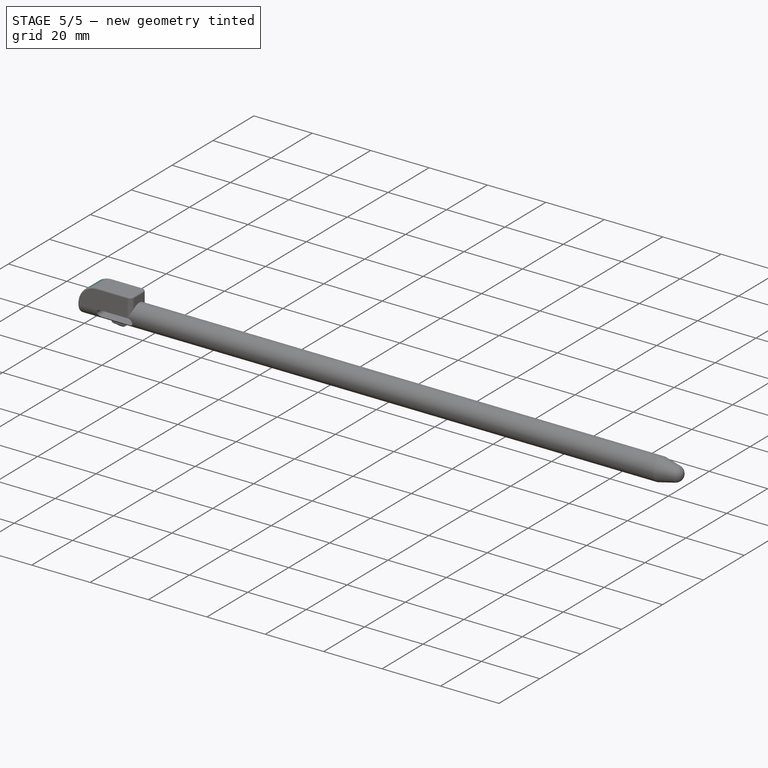
[diagram: stage 5 of 5 — iso view after this stage's code; geometry added in this stage tinted green]
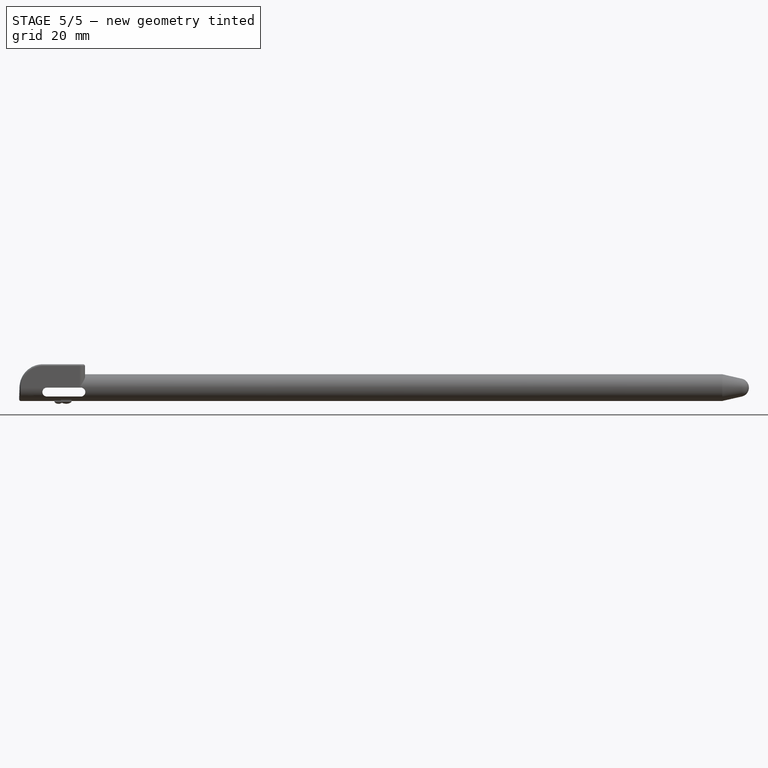
[diagram: stage 5 of 5 — front view after this stage's code; geometry added in this stage tinted green]
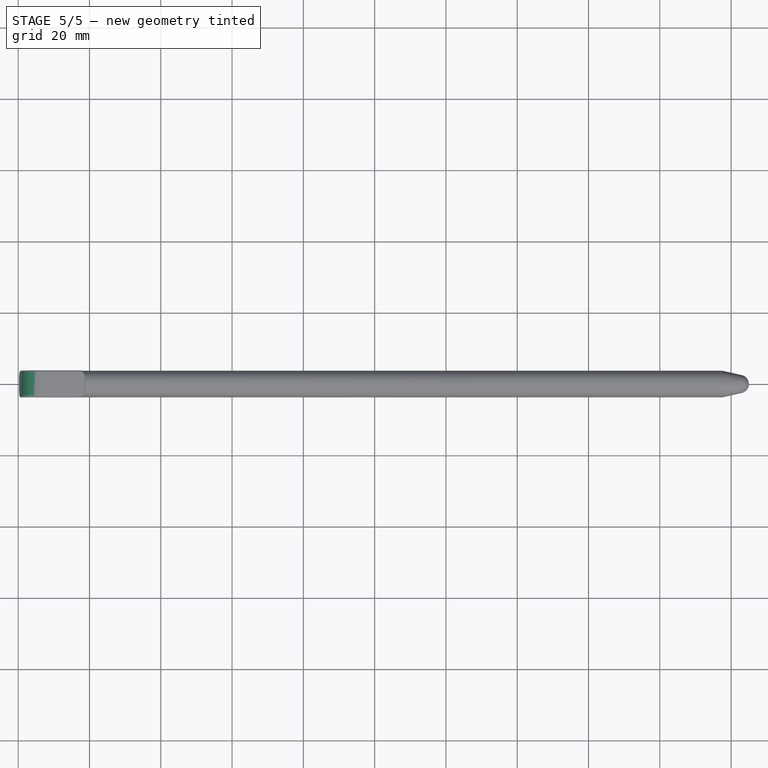
[diagram: stage 5 of 5 — top view after this stage's code; geometry added in this stage tinted green]
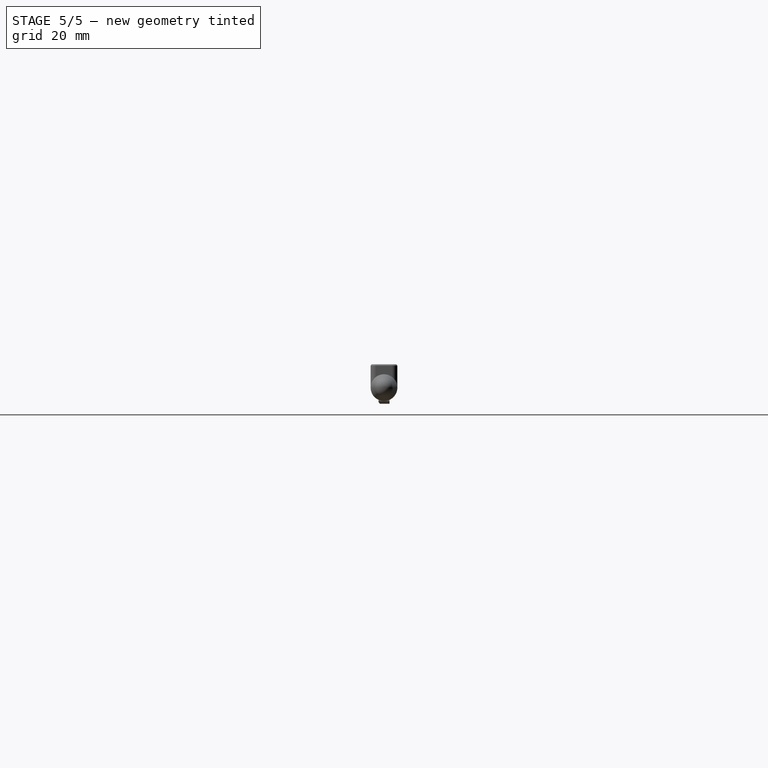
[diagram: stage 5 of 5 — right view after this stage's code; geometry added in this stage tinted green]
FEATURE [Sketcher::SketchObject] Sketch008
  ArcFitTolerance = 1e-06
  AttachmentSupport = -> [Pocket002]
  ExternalGeometry = -> [Pocket002]
  FullyConstrained = true
  MakeInternals = false
  MapMode = 5
  Placement = pos=(0,-3.75,9e-16) rot=(1,0,0;1.5708rad)
  sketch-geometry (4):
    g0: Circle [constr] CenterX=6.94275 CenterY=0 CenterZ=0 NormalX=0 NormalY=0 NormalZ=1 AngleXU=0 Radius=6.5625
    g1: LineSegment StartX=6.94272 StartY=6.5625 StartZ=0 EndX=0.6375 EndY=6.5625 EndZ=0
    g2: LineSegment StartX=0.6375 StartY=6.5625 StartZ=0 EndX=0.385492 EndY=0.2623 EndZ=0
    g3: ArcOfCircle CenterX=6.94275 CenterY=-1e-16 CenterZ=0 NormalX=0 NormalY=0 NormalZ=1 AngleXU=0 Radius=6.5625 StartAngle=1.5708 EndAngle=3.10161
  constraints (13):
    c: PointOnObject(g0,g-1)
    c: Radius(g0) = 6.5625
    c: PointOnObject(g1,g-4)
    c: Horizontal(g1)
    c: Coincident(g2,g1)
    c: PointOnObject(g2,g0)
    c: PointOnObject(g2,g-3)
    c: PointOnObject(g1,g0)
    c: Tangent(g-3,g0)
    c: PointOnObject(g-3,g2)
    c: Coincident(g3,g2)
    c: Coincident(g3,g1)
    c: Equal(g0,g3)
FEATURE [PartDesign::Pocket] Pocket003
  BaseFeature = -> Pocket002
  Direction = (0,1,-2e-16)
  Length = 5
  Length2 = 5
  Profile = -> Sketch008
  ReferenceAxis = -> Sketch008 [N_Axis]
  Refine = true
  Suppressed = false
  Type = 1
FEATURE [Sketcher::SketchObject] Sketch009
  ArcFitTolerance = 1e-06
  AttachmentSupport = -> [Pocket003]
  ExternalGeometry = -> [Pocket003]
  FullyConstrained = true
  MakeInternals = false
  MapMode = 5
  Placement = pos=(0,-3.75,9e-16) rot=(1,0,0;1.5708rad)
  sketch-geometry (7):
    g0: ArcOfCircle CenterX=5.07812 CenterY=-1.25 CenterZ=0 NormalX=0 NormalY=0 NormalZ=1 AngleXU=0 Radius=1.25 StartAngle=1.5708 EndAngle=4.71239
    g1: ArcOfCircle CenterX=17.5781 CenterY=-1.25 CenterZ=0 NormalX=0 NormalY=0 NormalZ=1 AngleXU=0 Radius=1.25 StartAngle=4.71239 EndAngle=7.85398
    g2: LineSegment StartX=5.07812 StartY=-2e-16 StartZ=0 EndX=17.5781 EndY=2e-16 EndZ=0
    g3: LineSegment StartX=5.07812 StartY=-2.5 StartZ=0 EndX=17.5781 EndY=-2.5 EndZ=0
    g4: LineSegment [constr] StartX=5.07812 StartY=-1.25 StartZ=0 EndX=17.5781 EndY=-1.25 EndZ=0
    g5: LineSegment [constr] StartX=11.3281 StartY=-1.25 StartZ=0 EndX=11.3281 EndY=-3.56219 EndZ=0
    g6: LineSegment [constr] StartX=5.07812 StartY=-2e-16 StartZ=0 EndX=5.07812 EndY=-2.5 EndZ=0
  constraints (16):
    c: Tangent(g0,g2) = 1.5708
    c: Tangent(g0,g3) = -1.5708
    c: Tangent(g1,g2) = 1.5708
    c: Tangent(g1,g3) = -1.5708
    c: Equal(g0,g1)
    c: Horizontal(g3)
    c: Vertical(g5)
    c: Symmetric(g-3,g-3,g5)
    c: DistanceX(g4,g4) = 12.5
    c: Coincident(g4,g0)
    c: Coincident(g1,g4)
    c: Symmetric(g0,g1,g5)
    c: Coincident(g6,g0)
    c: Coincident(g6,g0)
    c: DistanceY(g6,g6) = 2.5
    c: PointOnObject(g0,g-1)
FEATURE [PartDesign::Pocket] Pocket004
  BaseFeature = -> Pocket003
  Direction = (0,1,-2e-16)
  Length = 5
  Length2 = 5
  Profile = -> Sketch009
  ReferenceAxis = -> Sketch009 [N_Axis]
  Refine = true
  Suppressed = false
  Type = 1
FEATURE [PartDesign::Fillet] Fillet
  Base = -> Pocket004 [Edge6]
  BaseFeature = -> Pocket004
  Radius = 0.5
  Refine = true
  SupportTransform = false
  Suppressed = false
  UseAllEdges = false
FEATURE [Sketcher::SketchObject] Sketch010
  ArcFitTolerance = 1e-06
  AttachmentSupport = -> [YZ_Plane001]
  ExternalGeometry = -> [Fillet]
  FullyConstrained = true
  MakeInternals = false
  MapMode = 5
  Placement = pos=(0,0,0) rot=(0.57735,0.57735,0.57735;2.0944rad)
  sketch-geometry (6):
    g0: LineSegment [constr] StartX=-1.17188 StartY=-4.53125 StartZ=0 EndX=1.17187 EndY=-4.53125 EndZ=0
    g1: LineSegment StartX=-0.746671 StartY=-4.53125 StartZ=0 EndX=-1.17188 EndY=-4.10793 EndZ=0
    g2: LineSegment StartX=-1.17188 StartY=-4.10793 StartZ=0 EndX=-2.42468 EndY=-2.86067 EndZ=0
    g3: LineSegment StartX=-2.42468 StartY=-2.86067 StartZ=0 EndX=-2.84988 EndY=-2.43735 EndZ=0
    g4: LineSegment StartX=-2.84988 StartY=-2.43735 StartZ=0 EndX=-2.84988 EndY=-4.53125 EndZ=0
    g5: LineSegment StartX=-2.84988 StartY=-4.53125 StartZ=0 EndX=-0.746671 EndY=-4.53125 EndZ=0
  constraints (17):
    c: Coincident(g0,g-4)
    c: Coincident(g0,g-5)
    c: PointOnObject(g1,g0)
    c: PointOnObject(g1,g-4)
    c: Coincident(g2,g1)
    c: PointOnObject(g2,g-3)
    c: Coincident(g3,g2)
    c: PointOnObject(g3,g-3)
    c: Parallel(g3,g2)
    c: Parallel(g2,g1)
    c: Distance(g1,g1) = 0.6
    c: Distance(g3,g3) = 0.6
    c: Coincident(g4,g3)
    c: Vertical(g4)
    c: Coincident(g5,g4)
    c: Coincident(g5,g1)
    c: Horizontal(g5)
FEATURE [PartDesign::Pocket] Pocket005
  BaseFeature = -> Fillet
  Direction = (-1,0,0)
  Length = 5
  Length2 = 5
  Profile = -> Sketch010
  ReferenceAxis = -> Sketch010 [N_Axis]
  Refine = true
  Reversed = true
  Suppressed = false
  Type = 1
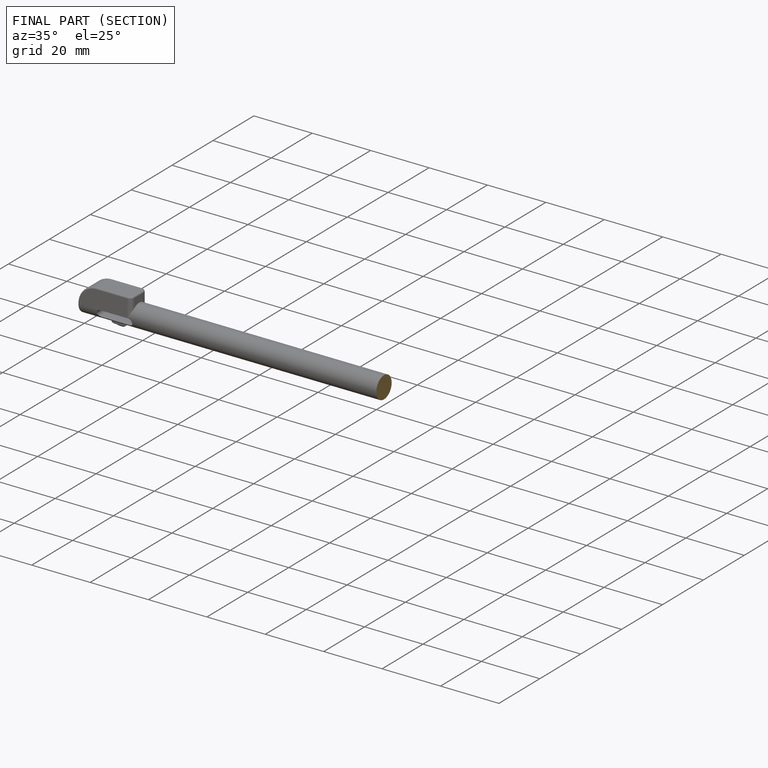
[diagram: finished part — half-section view (interior)]
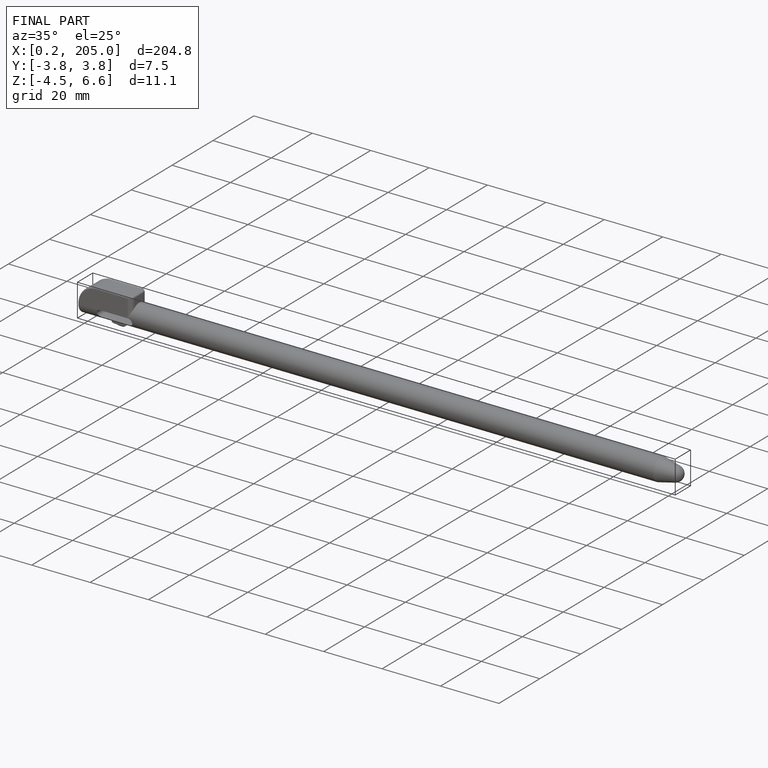
[diagram: finished part — iso view with bounding-box wireframe]
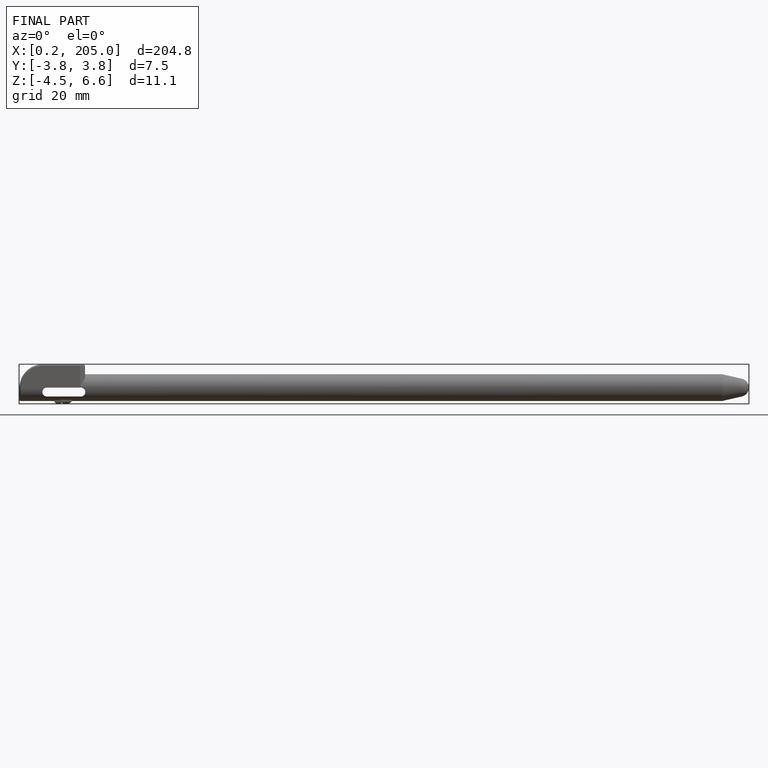
[diagram: finished part — front view with bounding-box wireframe]
